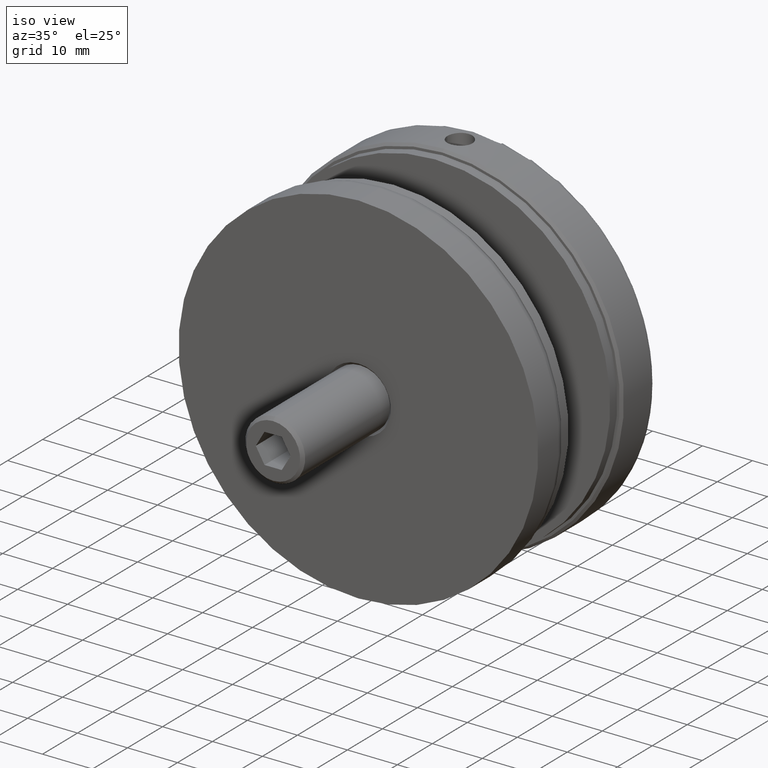
[diagram: clean part render]
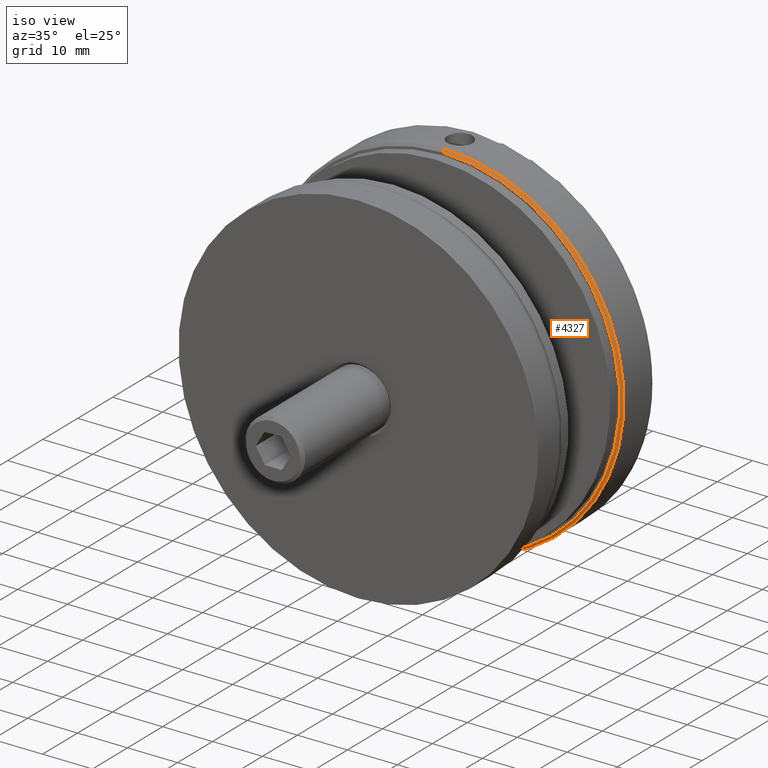
[diagram: same view with one face highlighted and labeled with its STEP entity id]
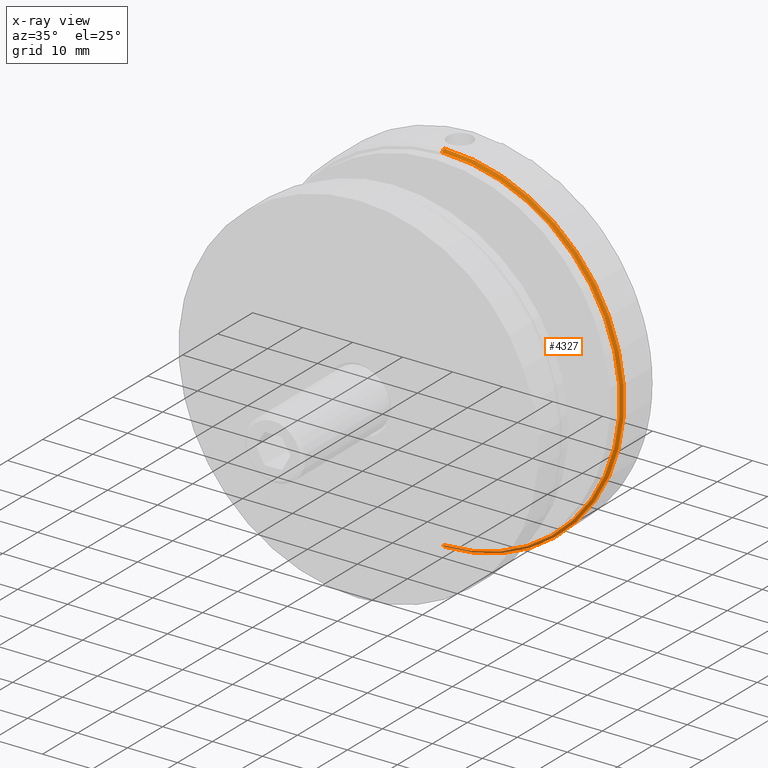
[diagram: x-ray of the same camera — body ghosted, the highlighted face saturated]
A machine part, iso view. The second image highlights one B-rep face of the part: STEP entity #4327.
The next image is the same camera in x-ray: the body ghosted, the highlighted face saturated — about 6% of this face is hidden behind the body in this view.
In plain terms, the highlighted conical surface has half-angle 45 deg.
Its self-contained STEP definition (entity closure, byte-faithful):
#179 = CIRCLE ( 'NONE', #10560, 35.49999999999997868 ) ;
#262 = CARTESIAN_POINT ( 'NONE',  ( 0.000000000000000000, 0.000000000000000000, 0.000000000000000000 ) ) ;
#708 = FACE_OUTER_BOUND ( 'NONE', #10972, .T. ) ;
#1350 = CARTESIAN_POINT ( 'NONE',  ( 0.000000000000000000, 0.5000000000000281997, -36.00000000000000711 ) ) ;
#1474 = DIRECTION ( 'NONE',  ( 0.000000000000000000, 1.000000000000000000, 0.000000000000000000 ) ) ;
#2130 = ORIENTED_EDGE ( 'NONE', *, *, #15486, .F. ) ;
#2491 = DIRECTION ( 'NONE',  ( 0.000000000000000000, 0.000000000000000000, -1.000000000000000000 ) ) ;
#2766 = CARTESIAN_POINT ( 'NONE',  ( 4.378112306951786280E-15, 0.000000000000000000, -35.49999999999997868 ) ) ;
#3712 = DIRECTION ( 'NONE',  ( -0.000000000000000000, -1.000000000000000000, -0.000000000000000000 ) ) ;
#4041 = CARTESIAN_POINT ( 'NONE',  ( 0.000000000000000000, 0.000000000000000000, 35.49999999999997868 ) ) ;
#4327 = ADVANCED_FACE ( 'NONE', ( #708 ), #4878, .T. ) ;
#4371 = VERTEX_POINT ( 'NONE', #1350 ) ;
#4469 = VECTOR ( 'NONE', #12676, 1000.000000000000114 ) ;
#4783 = ORIENTED_EDGE ( 'NONE', *, *, #7800, .F. ) ;
#4852 = LINE ( 'NONE', #15070, #4469 ) ;
#4878 = CONICAL_SURFACE ( 'NONE', #5441, 35.49999999999997868, 0.7853981633974482790 ) ;
#5239 = DIRECTION ( 'NONE',  ( 0.000000000000000000, 0.7071067811865474617, 0.7071067811865474617 ) ) ;
#5441 = AXIS2_PLACEMENT_3D ( 'NONE', #12109, #6247, #11008 ) ;
#6081 = VERTEX_POINT ( 'NONE', #2766 ) ;
#6247 = DIRECTION ( 'NONE',  ( 0.000000000000000000, 1.000000000000000000, 0.000000000000000000 ) ) ;
#6820 = EDGE_CURVE ( 'NONE', #6081, #4371, #4852, .T. ) ;
#6886 = CIRCLE ( 'NONE', #10378, 36.00000000000000711 ) ;
#7800 = EDGE_CURVE ( 'NONE', #13097, #4371, #6886, .T. ) ;
#8676 = CARTESIAN_POINT ( 'NONE',  ( 0.000000000000000000, 0.5000000000000281997, 0.000000000000000000 ) ) ;
#8696 = VERTEX_POINT ( 'NONE', #10149 ) ;
#9878 = DIRECTION ( 'NONE',  ( 0.000000000000000000, 0.000000000000000000, -1.000000000000000000 ) ) ;
#9946 = CARTESIAN_POINT ( 'NONE',  ( 4.408728476930471644E-15, 0.5000000000000281997, 36.00000000000000711 ) ) ;
#10149 = CARTESIAN_POINT ( 'NONE',  ( 0.000000000000000000, 0.000000000000000000, 35.49999999999997868 ) ) ;
#10378 = AXIS2_PLACEMENT_3D ( 'NONE', #8676, #1474, #9878 ) ;
#10560 = AXIS2_PLACEMENT_3D ( 'NONE', #262, #3712, #2491 ) ;
#10764 = ORIENTED_EDGE ( 'NONE', *, *, #15092, .F. ) ;
#10904 = LINE ( 'NONE', #4041, #11081 ) ;
#10972 = EDGE_LOOP ( 'NONE', ( #2130, #12836, #4783, #10764 ) ) ;
#11008 = DIRECTION ( 'NONE',  ( 0.000000000000000000, 0.000000000000000000, 1.000000000000000000 ) ) ;
#11081 = VECTOR ( 'NONE', #5239, 1000.000000000000114 ) ;
#12109 = CARTESIAN_POINT ( 'NONE',  ( 0.000000000000000000, 0.000000000000000000, 0.000000000000000000 ) ) ;
#12676 = DIRECTION ( 'NONE',  ( 8.659560562354932858E-17, 0.7071067811865474617, -0.7071067811865474617 ) ) ;
#12836 = ORIENTED_EDGE ( 'NONE', *, *, #6820, .T. ) ;
#13097 = VERTEX_POINT ( 'NONE', #9946 ) ;
#15070 = CARTESIAN_POINT ( 'NONE',  ( 4.347496136973100915E-15, 0.000000000000000000, -35.49999999999997868 ) ) ;
#15092 = EDGE_CURVE ( 'NONE', #8696, #13097, #10904, .T. ) ;
#15486 = EDGE_CURVE ( 'NONE', #6081, #8696, #179, .T. ) ;